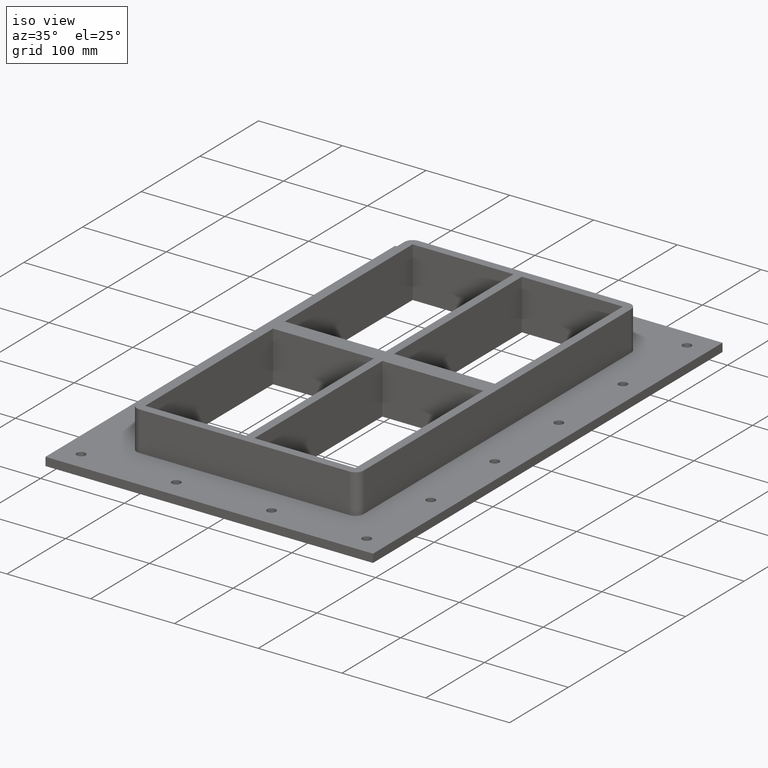
[diagram: clean part render]
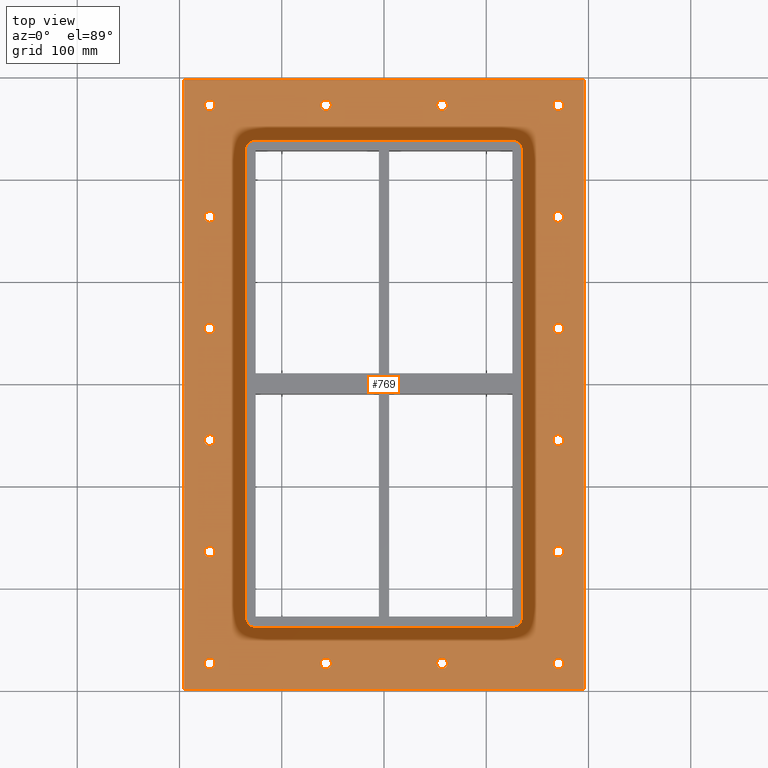
[diagram: tour spotlight — one face highlighted and labeled with its STEP entity id]
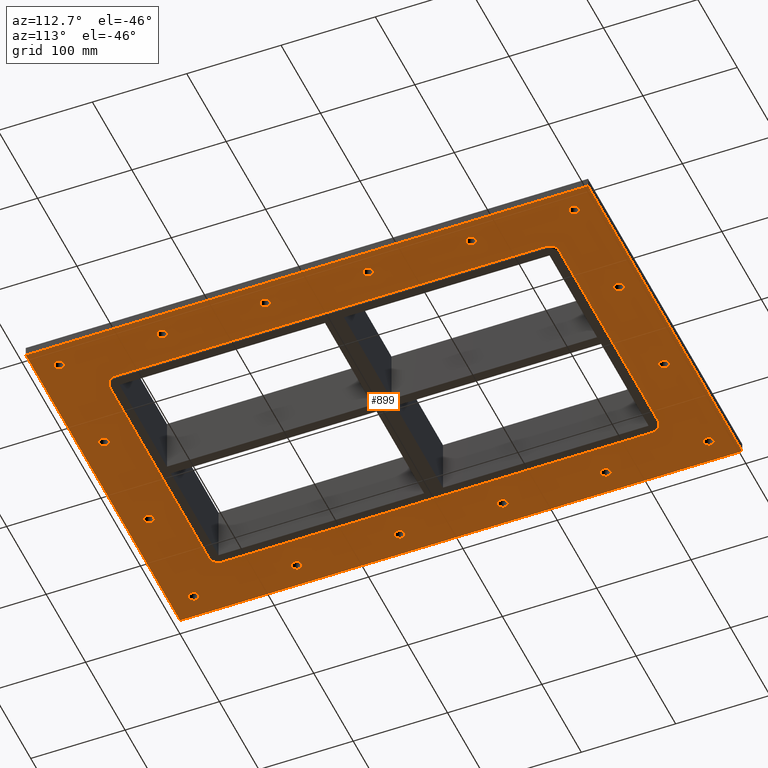
[diagram: tour spotlight — one face highlighted and labeled with its STEP entity id]
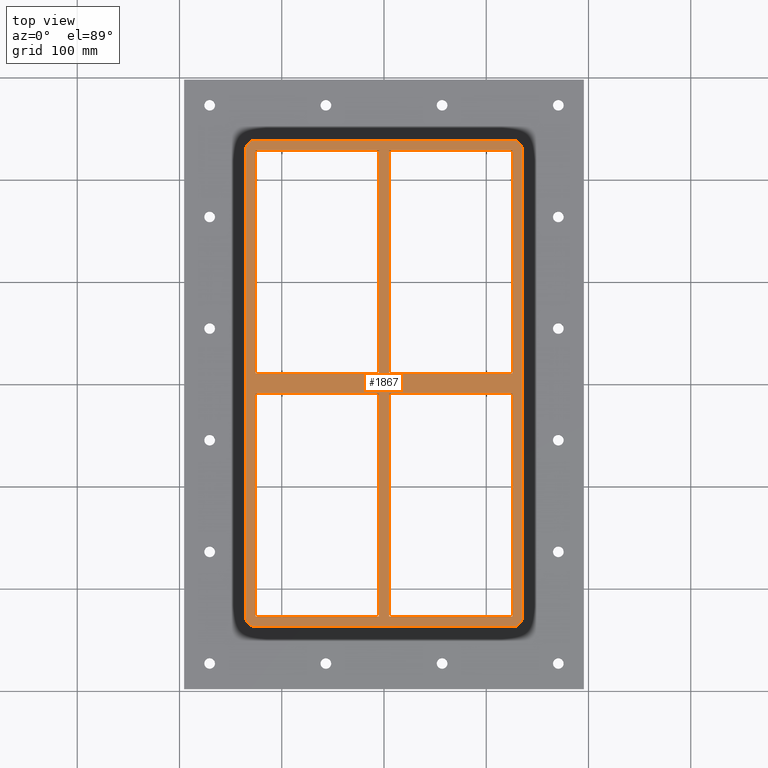
[diagram: tour spotlight — one face highlighted and labeled with its STEP entity id]
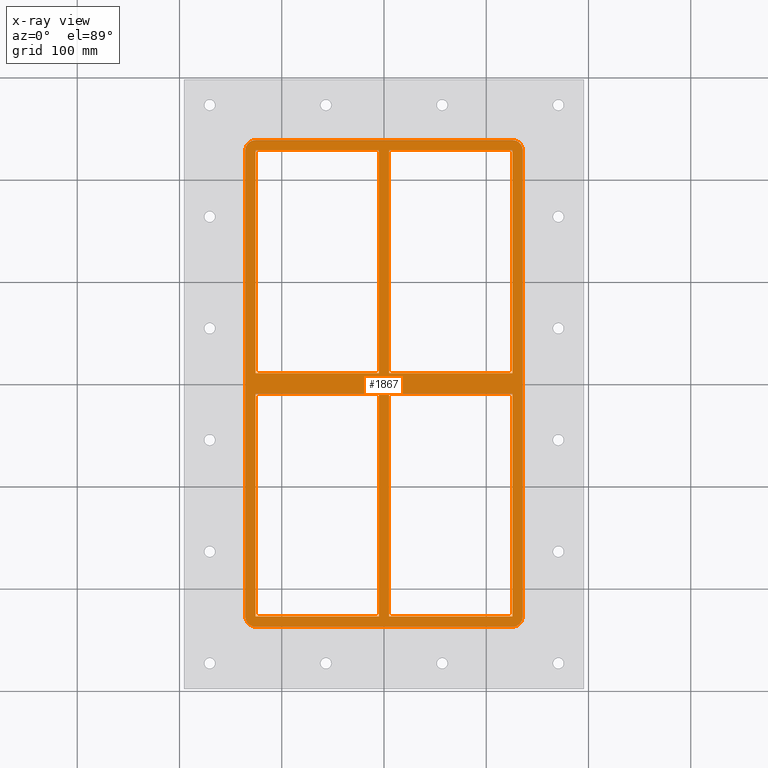
[diagram: x-ray of the same camera — body ghosted, this tour face saturated]
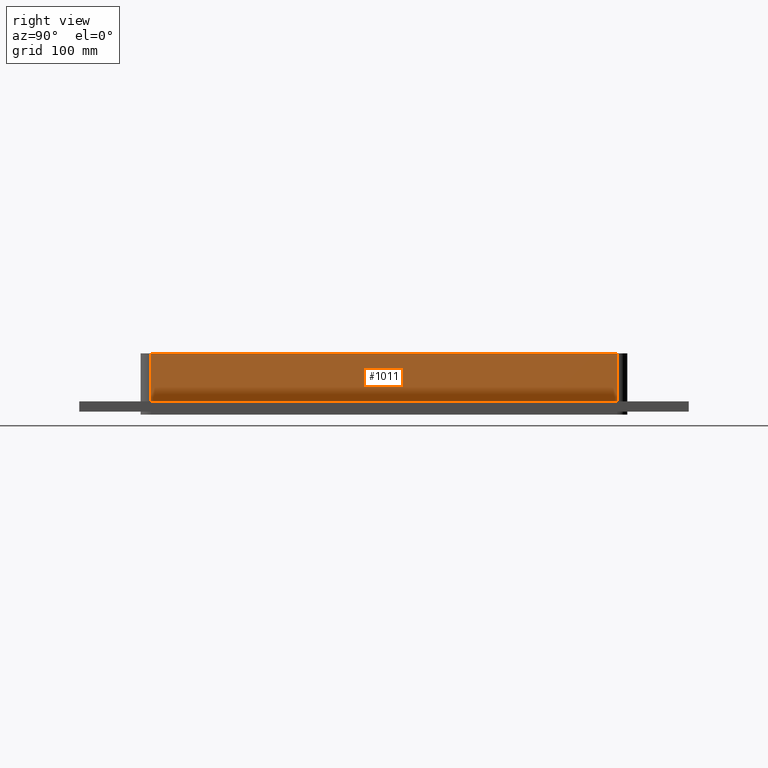
[diagram: tour spotlight — one face highlighted and labeled with its STEP entity id]
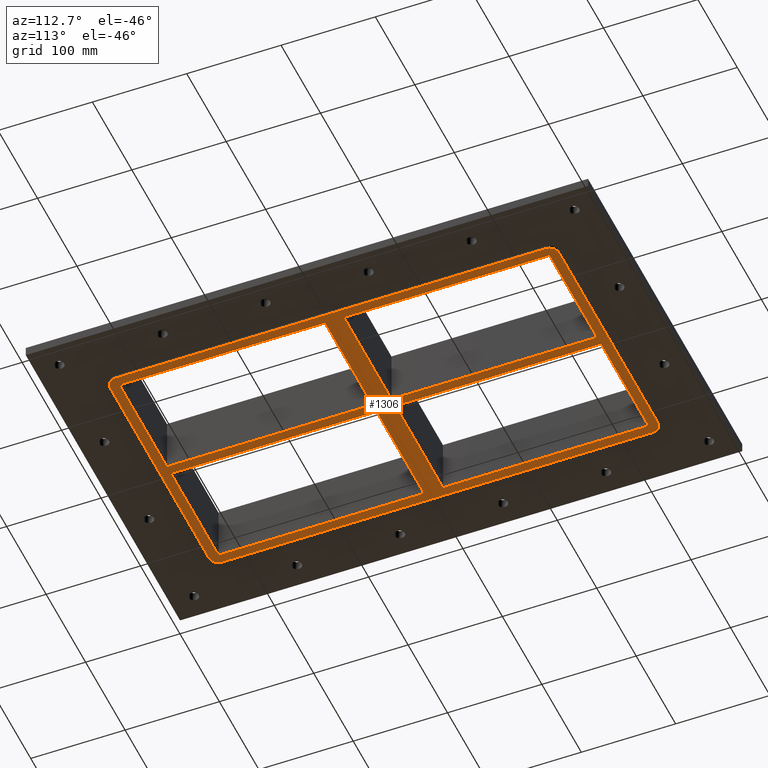
[diagram: tour spotlight — one face highlighted and labeled with its STEP entity id]
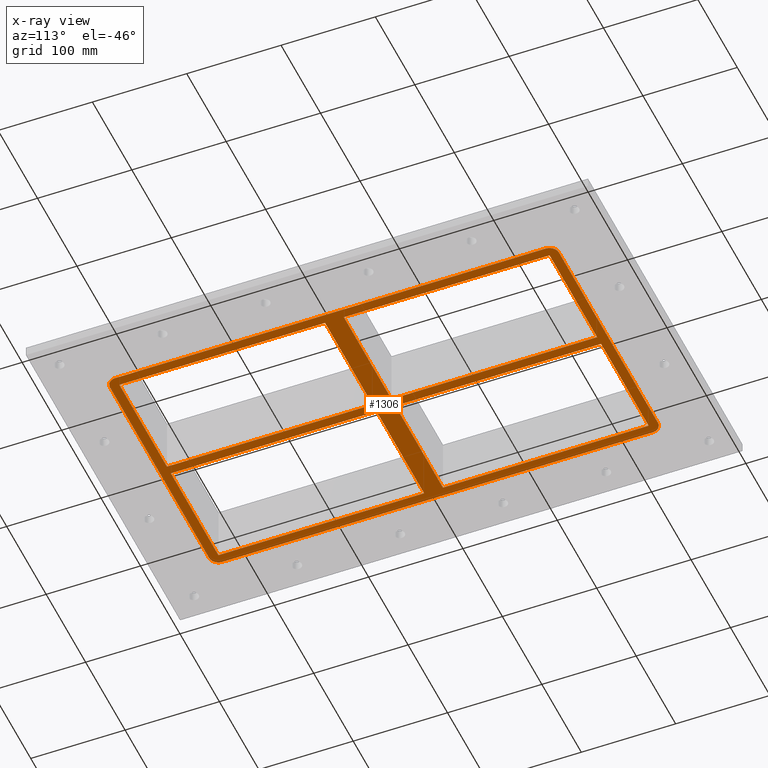
[diagram: x-ray of the same camera — body ghosted, this tour face saturated]
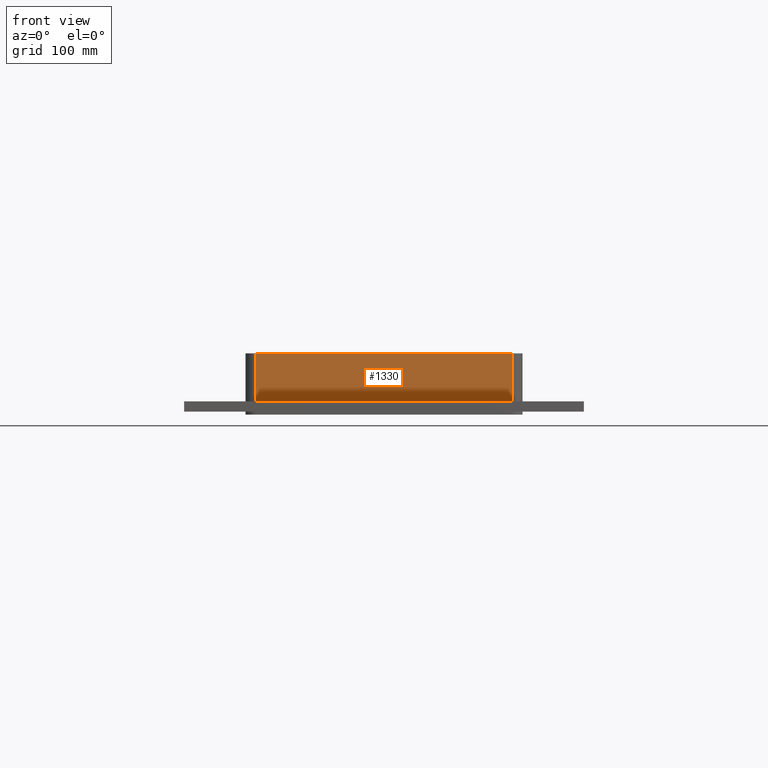
[diagram: tour spotlight — one face highlighted and labeled with its STEP entity id]
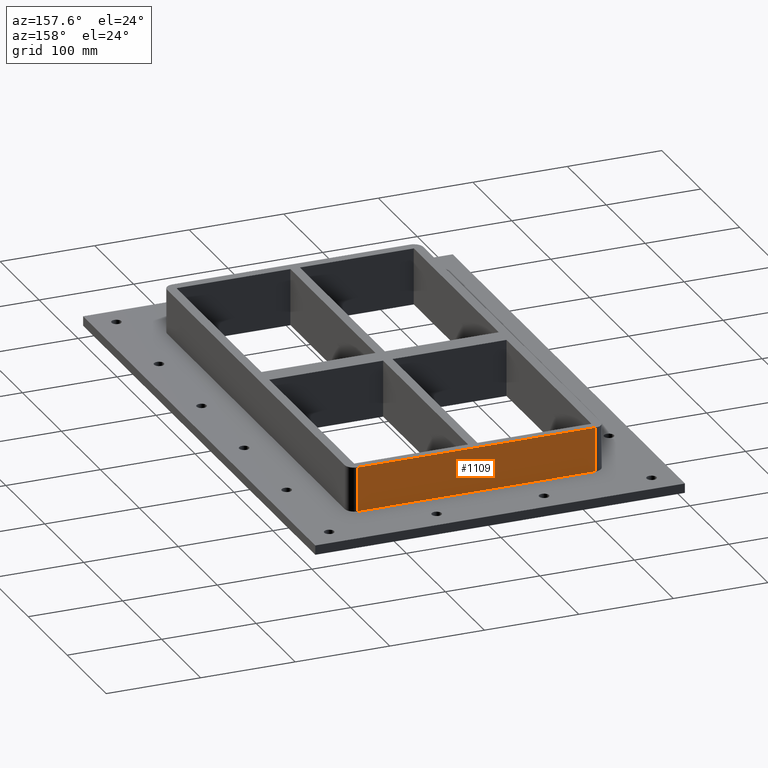
[diagram: tour spotlight — one face highlighted and labeled with its STEP entity id]
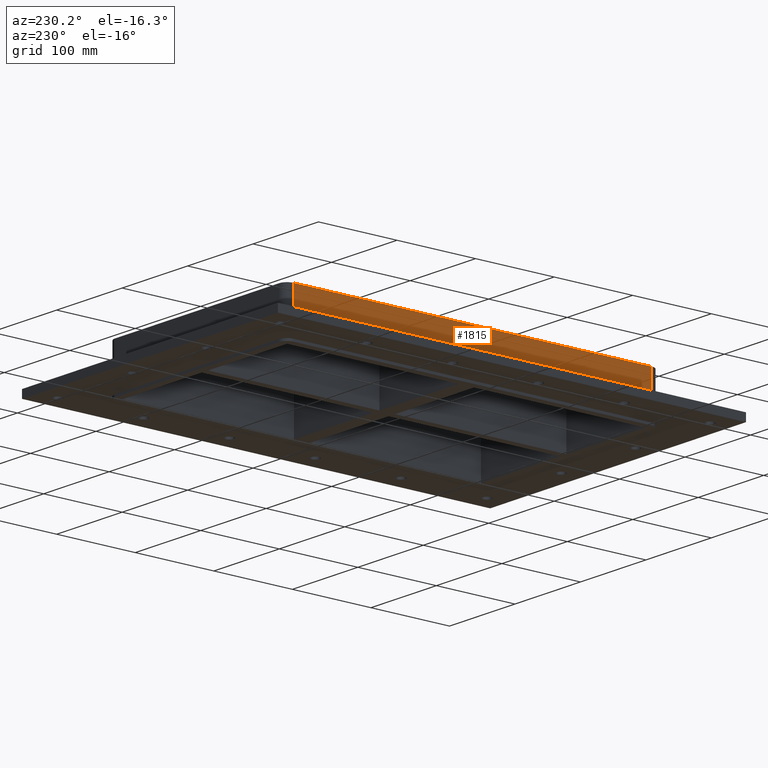
[diagram: tour spotlight — one face highlighted and labeled with its STEP entity id]
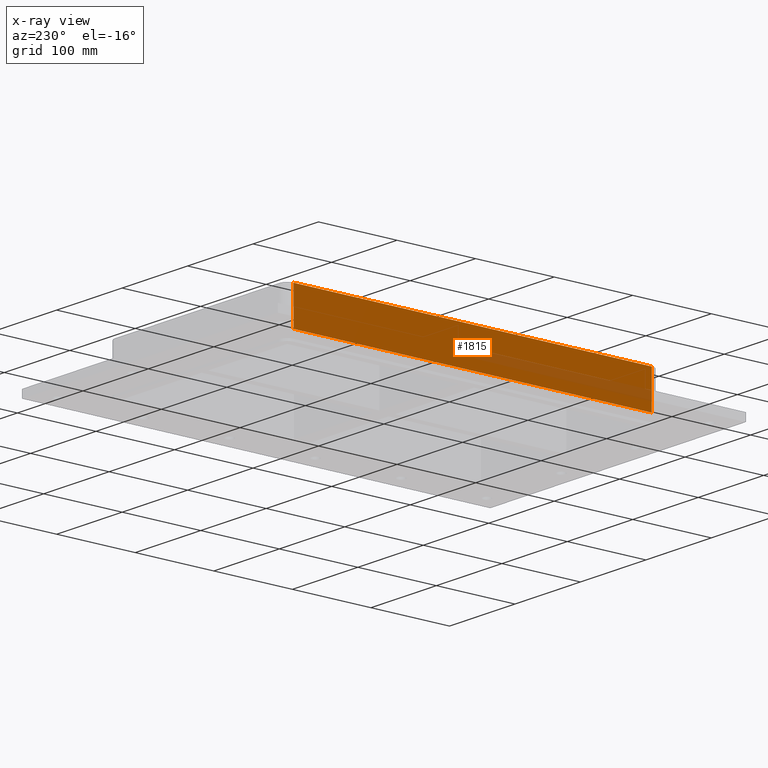
[diagram: x-ray of the same camera — body ghosted, this tour face saturated]
A machine part: a face-by-face anatomy tour. The part has 56 B-rep faces; the first image is the clean iso view, then the 8 largest visible faces are spotlighted one at a time (largest first), each with its STEP entity span.

Face 1 — top view, entity #769. In plain terms, the highlighted planar face has unit normal (0, 0, 1).
Definition (entity closure, byte-faithful):
#84=CARTESIAN_POINT('',(-51.583333333333314,-273.00000000000006,-16.999999999999996));
#85=VERTEX_POINT('',#84);
#86=CARTESIAN_POINT('',(-56.8333333333333,-273.00000000000006,-17.000000000000028));
#87=DIRECTION('',(0.0,0.0,-1.0));
#88=DIRECTION('',(1.0,0.0,0.0));
#89=AXIS2_PLACEMENT_3D('',#86,#87,#88);
#90=CIRCLE('',#89,5.25);
#91=EDGE_CURVE('',#85,#85,#90,.T.);
#112=CARTESIAN_POINT('',(62.083333333333357,-273.00000000000006,-16.999999999999996));
#113=VERTEX_POINT('',#112);
#114=CARTESIAN_POINT('',(56.833333333333371,-273.00000000000006,-17.000000000000028));
#115=DIRECTION('',(0.0,0.0,-1.0));
#116=DIRECTION('',(1.0,0.0,0.0));
#117=AXIS2_PLACEMENT_3D('',#114,#115,#116);
#118=CIRCLE('',#117,5.25);
#119=EDGE_CURVE('',#113,#113,#118,.T.);
#140=CARTESIAN_POINT('',(62.083333333333286,273.0,-16.999999999999996));
#141=VERTEX_POINT('',#140);
#142=CARTESIAN_POINT('',(56.8333333333333,273.0,-17.000000000000028));
#143=DIRECTION('',(0.0,0.0,-1.0));
#144=DIRECTION('',(1.0,0.0,0.0));
#145=AXIS2_PLACEMENT_3D('',#142,#143,#144);
#146=CIRCLE('',#145,5.25);
#147=EDGE_CURVE('',#141,#141,#146,.T.);
#168=CARTESIAN_POINT('',(-51.583333333333385,273.0,-16.999999999999996));
#169=VERTEX_POINT('',#168);
#170=CARTESIAN_POINT('',(-56.833333333333371,273.0,-17.000000000000028));
#171=DIRECTION('',(0.0,0.0,-1.0));
#172=DIRECTION('',(1.0,0.0,0.0));
#173=AXIS2_PLACEMENT_3D('',#170,#171,#172);
#174=CIRCLE('',#173,5.25);
#175=EDGE_CURVE('',#169,#169,#174,.T.);
#196=CARTESIAN_POINT('',(175.75,-163.79999999999981,-16.999999999999996));
#197=VERTEX_POINT('',#196);
#198=CARTESIAN_POINT('',(170.5,-163.79999999999981,-17.000000000000028));
#199=DIRECTION('',(0.0,0.0,-1.0));
#200=DIRECTION('',(1.0,0.0,0.0));
#201=AXIS2_PLACEMENT_3D('',#198,#199,#200);
#202=CIRCLE('',#201,5.25);
#203=EDGE_CURVE('',#197,#197,#202,.T.);
#224=CARTESIAN_POINT('',(175.75,-54.599999999999831,-16.999999999999996));
#225=VERTEX_POINT('',#224);
#226=CARTESIAN_POINT('',(170.5,-54.599999999999831,-17.000000000000028));
#227=DIRECTION('',(0.0,0.0,-1.0));
#228=DIRECTION('',(1.0,0.0,0.0));
#229=AXIS2_PLACEMENT_3D('',#226,#227,#228);
#230=CIRCLE('',#229,5.25);
#231=EDGE_CURVE('',#225,#225,#230,.T.);
#252=CARTESIAN_POINT('',(175.74999999999994,54.600000000000115,-16.999999999999996));
#253=VERTEX_POINT('',#252);
#254=CARTESIAN_POINT('',(170.49999999999997,54.600000000000115,-17.000000000000028));
#255=DIRECTION('',(0.0,0.0,-1.0));
#256=DIRECTION('',(1.0,0.0,0.0));
#257=AXIS2_PLACEMENT_3D('',#254,#255,#256);
#258=CIRCLE('',#257,5.25);
#259=EDGE_CURVE('',#253,#253,#258,.T.);
#280=CARTESIAN_POINT('',(175.74999999999994,163.8000000000001,-16.999999999999996));
#281=VERTEX_POINT('',#280);
#282=CARTESIAN_POINT('',(170.49999999999997,163.8000000000001,-17.000000000000028));
#283=DIRECTION('',(0.0,0.0,-1.0));
#284=DIRECTION('',(1.0,0.0,0.0));
#285=AXIS2_PLACEMENT_3D('',#282,#283,#284);
#286=CIRCLE('',#285,5.25);
#287=EDGE_CURVE('',#281,#281,#286,.T.);
#308=CARTESIAN_POINT('',(-165.25000000000003,163.7999999999999,-16.999999999999996));
#309=VERTEX_POINT('',#308);
#310=CARTESIAN_POINT('',(-170.5,163.7999999999999,-17.000000000000028));
#311=DIRECTION('',(0.0,0.0,-1.0));
#312=DIRECTION('',(1.0,0.0,0.0));
#313=AXIS2_PLACEMENT_3D('',#310,#311,#312);
#314=CIRCLE('',#313,5.25);
#315=EDGE_CURVE('',#309,#309,#314,.T.);
#336=CARTESIAN_POINT('',(-165.25000000000003,54.599999999999881,-16.999999999999996));
#337=VERTEX_POINT('',#336);
#338=CARTESIAN_POINT('',(-170.5,54.599999999999881,-17.000000000000028));
#339=DIRECTION('',(0.0,0.0,-1.0));
#340=DIRECTION('',(1.0,0.0,0.0));
#341=AXIS2_PLACEMENT_3D('',#338,#339,#340);
#342=CIRCLE('',#341,5.25);
#343=EDGE_CURVE('',#337,#337,#342,.T.);
#364=CARTESIAN_POINT('',(-165.25,-54.600000000000094,-16.999999999999996));
#365=VERTEX_POINT('',#364);
#366=CARTESIAN_POINT('',(-170.49999999999997,-54.600000000000094,-17.000000000000028));
#367=DIRECTION('',(0.0,0.0,-1.0));
#368=DIRECTION('',(1.0,0.0,0.0));
#369=AXIS2_PLACEMENT_3D('',#366,#367,#368);
#370=CIRCLE('',#369,5.25);
#371=EDGE_CURVE('',#365,#365,#370,.T.);
#392=CARTESIAN_POINT('',(-165.25,-163.8000000000001,-16.999999999999996));
#393=VERTEX_POINT('',#392);
#394=CARTESIAN_POINT('',(-170.49999999999997,-163.8000000000001,-17.000000000000028));
#395=DIRECTION('',(0.0,0.0,-1.0));
#396=DIRECTION('',(1.0,0.0,0.0));
#397=AXIS2_PLACEMENT_3D('',#394,#395,#396);
#398=CIRCLE('',#397,5.25);
#399=EDGE_CURVE('',#393,#393,#398,.T.);
#420=CARTESIAN_POINT('',(-165.25000000000006,272.99999999999994,-16.999999999999996));
#421=VERTEX_POINT('',#420);
#422=CARTESIAN_POINT('',(-170.50000000000006,272.99999999999994,-17.000000000000028));
#423=DIRECTION('',(0.0,0.0,-1.0));
#424=DIRECTION('',(1.0,0.0,0.0));
#425=AXIS2_PLACEMENT_3D('',#422,#423,#424);
#426=CIRCLE('',#425,5.25);
#427=EDGE_CURVE('',#421,#421,#426,.T.);
#448=CARTESIAN_POINT('',(175.74999999999994,273.00000000000006,-16.999999999999996));
#449=VERTEX_POINT('',#448);
#450=CARTESIAN_POINT('',(170.49999999999997,273.00000000000006,-17.000000000000028));
#451=DIRECTION('',(0.0,0.0,-1.0));
#452=DIRECTION('',(1.0,0.0,0.0));
#453=AXIS2_PLACEMENT_3D('',#450,#451,#452);
#454=CIRCLE('',#453,5.25);
#455=EDGE_CURVE('',#449,#449,#454,.T.);
#476=CARTESIAN_POINT('',(175.75000000000003,-273.0,-16.999999999999996));
#477=VERTEX_POINT('',#476);
#478=CARTESIAN_POINT('',(170.50000000000006,-273.0,-17.000000000000028));
#479=DIRECTION('',(0.0,0.0,-1.0));
#480=DIRECTION('',(1.0,0.0,0.0));
#481=AXIS2_PLACEMENT_3D('',#478,#479,#480);
#482=CIRCLE('',#481,5.25);
#483=EDGE_CURVE('',#477,#477,#482,.T.);
#504=CARTESIAN_POINT('',(-165.25,-273.00000000000006,-16.999999999999996));
#505=VERTEX_POINT('',#504);
#506=CARTESIAN_POINT('',(-170.49999999999997,-273.00000000000006,-17.000000000000028));
#507=DIRECTION('',(0.0,0.0,-1.0));
#508=DIRECTION('',(1.0,0.0,0.0));
#509=AXIS2_PLACEMENT_3D('',#506,#507,#508);
#510=CIRCLE('',#509,5.25);
#511=EDGE_CURVE('',#505,#505,#510,.T.);
#531=CARTESIAN_POINT('',(-195.49999999999997,-298.00000000000006,-17.0));
#532=VERTEX_POINT('',#531);
#539=CARTESIAN_POINT('',(-195.50000000000006,297.99999999999994,-17.0));
#540=VERTEX_POINT('',#539);
#541=CARTESIAN_POINT('',(-195.50000000000009,298.00000000000006,-17.0));
#542=DIRECTION('',(0.0,-1.0,0.0));
#543=VECTOR('',#542,596.00000000000011);
#544=LINE('',#541,#543);
#545=EDGE_CURVE('',#540,#532,#544,.T.);
#570=CARTESIAN_POINT('',(195.49999999999997,298.00000000000006,-17.0));
#571=VERTEX_POINT('',#570);
#572=CARTESIAN_POINT('',(195.50000000000003,298.00000000000006,-17.0));
#573=DIRECTION('',(-1.0,0.0,0.0));
#574=VECTOR('',#573,391.00000000000011);
#575=LINE('',#572,#574);
#576=EDGE_CURVE('',#571,#540,#575,.T.);
#601=CARTESIAN_POINT('',(195.50000000000006,-298.0,-17.0));
#602=VERTEX_POINT('',#601);
#603=CARTESIAN_POINT('',(195.50000000000006,-298.00000000000006,-17.0));
#604=DIRECTION('',(0.0,1.0,0.0));
#605=VECTOR('',#604,596.00000000000011);
#606=LINE('',#603,#605);
#607=EDGE_CURVE('',#602,#571,#606,.T.);
#630=CARTESIAN_POINT('',(-195.49999999999994,-298.00000000000006,-17.0));
#631=DIRECTION('',(1.0,0.0,0.0));
#632=VECTOR('',#631,391.0);
#633=LINE('',#630,#632);
#634=EDGE_CURVE('',#532,#602,#633,.T.);
#640=CARTESIAN_POINT('',(-8.638817E-015,-8.638817E-015,-16.999999999999996));
#641=DIRECTION('',(0.0,0.0,1.0));
#642=DIRECTION('',(1.0,0.0,0.0));
#643=AXIS2_PLACEMENT_3D('',#640,#641,#642);
#644=PLANE('',#643);
#645=ORIENTED_EDGE('',*,*,#634,.T.);
#646=ORIENTED_EDGE('',*,*,#607,.T.);
#647=ORIENTED_EDGE('',*,*,#576,.T.);
#648=ORIENTED_EDGE('',*,*,#545,.T.);
#649=EDGE_LOOP('',(#645,#646,#647,#648));
#650=FACE_OUTER_BOUND('',#649,.T.);
#651=ORIENTED_EDGE('',*,*,#91,.T.);
#652=EDGE_LOOP('',(#651));
#653=FACE_BOUND('',#652,.T.);
#654=ORIENTED_EDGE('',*,*,#119,.T.);
#655=EDGE_LOOP('',(#654));
#656=FACE_BOUND('',#655,.T.);
#657=ORIENTED_EDGE('',*,*,#147,.T.);
#658=EDGE_LOOP('',(#657));
#659=FACE_BOUND('',#658,.T.);
#660=ORIENTED_EDGE('',*,*,#175,.T.);
#661=EDGE_LOOP('',(#660));
#662=FACE_BOUND('',#661,.T.);
#663=ORIENTED_EDGE('',*,*,#203,.T.);
#664=EDGE_LOOP('',(#663));
#665=FACE_BOUND('',#664,.T.);
#666=ORIENTED_EDGE('',*,*,#231,.T.);
#667=EDGE_LOOP('',(#666));
#668=FACE_BOUND('',#667,.T.);
#669=ORIENTED_EDGE('',*,*,#259,.T.);
#670=EDGE_LOOP('',(#669));
#671=FACE_BOUND('',#670,.T.);
#672=ORIENTED_EDGE('',*,*,#287,.T.);
#673=EDGE_LOOP('',(#672));
#674=FACE_BOUND('',#673,.T.);
#675=ORIENTED_EDGE('',*,*,#315,.T.);
#676=EDGE_LOOP('',(#675));
#677=FACE_BOUND('',#676,.T.);
#678=ORIENTED_EDGE('',*,*,#343,.T.);
#679=EDGE_LOOP('',(#678));
#680=FACE_BOUND('',#679,.T.);
#681=ORIENTED_EDGE('',*,*,#371,.T.);
#682=EDGE_LOOP('',(#681));
#683=FACE_BOUND('',#682,.T.);
#684=ORIENTED_EDGE('',*,*,#399,.T.);
#685=EDGE_LOOP('',(#684));
#686=FACE_BOUND('',#685,.T.);
#687=ORIENTED_EDGE('',*,*,#427,.T.);
#688=EDGE_LOOP('',(#687));
#689=FACE_BOUND('',#688,.T.);
#690=ORIENTED_EDGE('',*,*,#455,.T.);
#691=EDGE_LOOP('',(#690));
#692=FACE_BOUND('',#691,.T.);
#693=ORIENTED_EDGE('',*,*,#483,.T.);
#694=EDGE_LOOP('',(#693));
#695=FACE_BOUND('',#694,.T.);
#696=ORIENTED_EDGE('',*,*,#511,.T.);
#697=EDGE_LOOP('',(#696));
#698=FACE_BOUND('',#697,.T.);
#699=CARTESIAN_POINT('',(135.50000000000003,228.00000000000006,-17.0));
#700=VERTEX_POINT('',#699);
#701=CARTESIAN_POINT('',(125.5,238.00000000000006,-17.0));
#702=VERTEX_POINT('',#701);
#703=CARTESIAN_POINT('',(125.5,228.0,-16.999999999999996));
#704=DIRECTION('',(0.0,0.0,1.0));
#705=DIRECTION('',(0.707106781186547,0.707106781186547,0.0));
#706=AXIS2_PLACEMENT_3D('',#703,#704,#705);
#707=CIRCLE('',#706,9.999999999999998);
#708=EDGE_CURVE('',#700,#702,#707,.T.);
#709=ORIENTED_EDGE('',*,*,#708,.F.);
#710=CARTESIAN_POINT('',(135.50000000000006,-227.99999999999997,-17.0));
#711=VERTEX_POINT('',#710);
#712=CARTESIAN_POINT('',(135.50000000000009,-227.99999999999997,-16.999999999999996));
#713=DIRECTION('',(0.0,1.0,0.0));
#714=VECTOR('',#713,456.0);
#715=LINE('',#712,#714);
#716=EDGE_CURVE('',#711,#700,#715,.T.);
#717=ORIENTED_EDGE('',*,*,#716,.F.);
#718=CARTESIAN_POINT('',(125.50000000000009,-238.00000000000006,-17.0));
#719=VERTEX_POINT('',#718);
#720=CARTESIAN_POINT('',(125.50000000000009,-228.00000000000006,-16.999999999999996));
#721=DIRECTION('',(0.0,0.0,1.0));
#722=DIRECTION('',(0.707106781186547,-0.707106781186547,0.0));
#723=AXIS2_PLACEMENT_3D('',#720,#721,#722);
#724=CIRCLE('',#723,9.999999999999998);
#725=EDGE_CURVE('',#719,#711,#724,.T.);
#726=ORIENTED_EDGE('',*,*,#725,.F.);
#727=CARTESIAN_POINT('',(-125.5,-238.00000000000006,-17.0));
#728=VERTEX_POINT('',#727);
#729=CARTESIAN_POINT('',(-125.5,-238.00000000000006,-16.999999999999996));
#730=DIRECTION('',(1.0,0.0,0.0));
#731=VECTOR('',#730,251.00000000000006);
#732=LINE('',#729,#731);
#733=EDGE_CURVE('',#728,#719,#732,.T.);
#734=ORIENTED_EDGE('',*,*,#733,.F.);
#735=CARTESIAN_POINT('',(-135.5,-228.00000000000006,-17.0));
#736=VERTEX_POINT('',#735);
#737=CARTESIAN_POINT('',(-125.49999999999991,-228.00000000000006,-16.999999999999996));
#738=DIRECTION('',(0.0,0.0,1.0));
#739=DIRECTION('',(-0.707106781186547,-0.707106781186547,0.0));
#740=AXIS2_PLACEMENT_3D('',#737,#738,#739);
#741=CIRCLE('',#740,9.999999999999998);
#742=EDGE_CURVE('',#736,#728,#741,.T.);
#743=ORIENTED_EDGE('',*,*,#742,.F.);
#744=CARTESIAN_POINT('',(-135.50000000000009,227.99999999999997,-17.0));
#745=VERTEX_POINT('',#744);
#746=CARTESIAN_POINT('',(-135.50000000000006,227.99999999999997,-16.999999999999996));
#747=DIRECTION('',(0.0,-1.0,0.0));
#748=VECTOR('',#747,456.0);
#749=LINE('',#746,#748);
#750=EDGE_CURVE('',#745,#736,#749,.T.);
#751=ORIENTED_EDGE('',*,*,#750,.F.);
#752=CARTESIAN_POINT('',(-125.50000000000009,237.99999999999997,-17.0));
#753=VERTEX_POINT('',#752);
#754=CARTESIAN_POINT('',(-125.50000000000006,228.0,-16.999999999999996));
#755=DIRECTION('',(0.0,0.0,1.0));
#756=DIRECTION('',(-0.707106781186547,0.707106781186547,0.0));
#757=AXIS2_PLACEMENT_3D('',#754,#755,#756);
#758=CIRCLE('',#757,9.999999999999998);
#759=EDGE_CURVE('',#753,#745,#758,.T.);
#760=ORIENTED_EDGE('',*,*,#759,.F.);
#761=CARTESIAN_POINT('',(125.50000000000001,238.0,-16.999999999999996));
#762=DIRECTION('',(-1.0,0.0,0.0));
#763=VECTOR('',#762,251.00000000000006);
#764=LINE('',#761,#763);
#765=EDGE_CURVE('',#702,#753,#764,.T.);
#766=ORIENTED_EDGE('',*,*,#765,.F.);
#767=EDGE_LOOP('',(#709,#717,#726,#734,#743,#751,#760,#766));
#768=FACE_BOUND('',#767,.T.);
#769=ADVANCED_FACE('',(#650,#653,#656,#659,#662,#665,#668,#671,#674,#677,#680,#683,#686,#689,#692,#695,#698,#768),#644,.T.);

Face 2 — auxiliary view, entity #899. In plain terms, the highlighted planar face has unit normal (0, 0, 1).
Definition (entity closure, byte-faithful):
#73=CARTESIAN_POINT('',(-62.083333333333286,-273.00000000000006,-27.000000000000028));
#74=VERTEX_POINT('',#73);
#75=CARTESIAN_POINT('',(-56.8333333333333,-273.00000000000006,-27.000000000000028));
#76=DIRECTION('',(0.0,0.0,1.0));
#77=DIRECTION('',(1.0,0.0,0.0));
#78=AXIS2_PLACEMENT_3D('',#75,#76,#77);
#79=CIRCLE('',#78,5.25);
#80=EDGE_CURVE('',#74,#74,#79,.T.);
#101=CARTESIAN_POINT('',(51.583333333333385,-273.00000000000006,-27.000000000000028));
#102=VERTEX_POINT('',#101);
#103=CARTESIAN_POINT('',(56.833333333333371,-273.00000000000006,-27.000000000000028));
#104=DIRECTION('',(0.0,0.0,1.0));
#105=DIRECTION('',(1.0,0.0,0.0));
#106=AXIS2_PLACEMENT_3D('',#103,#104,#105);
#107=CIRCLE('',#106,5.25);
#108=EDGE_CURVE('',#102,#102,#107,.T.);
#129=CARTESIAN_POINT('',(51.583333333333314,273.0,-27.000000000000028));
#130=VERTEX_POINT('',#129);
#131=CARTESIAN_POINT('',(56.8333333333333,273.0,-27.000000000000028));
#132=DIRECTION('',(0.0,0.0,1.0));
#133=DIRECTION('',(1.0,0.0,0.0));
#134=AXIS2_PLACEMENT_3D('',#131,#132,#133);
#135=CIRCLE('',#134,5.25);
#136=EDGE_CURVE('',#130,#130,#135,.T.);
#157=CARTESIAN_POINT('',(-62.083333333333357,273.0,-27.000000000000028));
#158=VERTEX_POINT('',#157);
#159=CARTESIAN_POINT('',(-56.833333333333371,273.0,-27.000000000000028));
#160=DIRECTION('',(0.0,0.0,1.0));
#161=DIRECTION('',(1.0,0.0,0.0));
#162=AXIS2_PLACEMENT_3D('',#159,#160,#161);
#163=CIRCLE('',#162,5.25);
#164=EDGE_CURVE('',#158,#158,#163,.T.);
#185=CARTESIAN_POINT('',(165.25000000000003,-163.79999999999981,-27.000000000000028));
#186=VERTEX_POINT('',#185);
#187=CARTESIAN_POINT('',(170.5,-163.79999999999981,-27.000000000000028));
#188=DIRECTION('',(0.0,0.0,1.0));
#189=DIRECTION('',(1.0,0.0,0.0));
#190=AXIS2_PLACEMENT_3D('',#187,#188,#189);
#191=CIRCLE('',#190,5.25);
#192=EDGE_CURVE('',#186,#186,#191,.T.);
#213=CARTESIAN_POINT('',(165.25000000000003,-54.599999999999831,-27.000000000000028));
#214=VERTEX_POINT('',#213);
#215=CARTESIAN_POINT('',(170.5,-54.599999999999831,-27.000000000000028));
#216=DIRECTION('',(0.0,0.0,1.0));
#217=DIRECTION('',(1.0,0.0,0.0));
#218=AXIS2_PLACEMENT_3D('',#215,#216,#217);
#219=CIRCLE('',#218,5.25);
#220=EDGE_CURVE('',#214,#214,#219,.T.);
#241=CARTESIAN_POINT('',(165.25,54.600000000000115,-27.000000000000028));
#242=VERTEX_POINT('',#241);
#243=CARTESIAN_POINT('',(170.49999999999997,54.600000000000115,-27.000000000000028));
#244=DIRECTION('',(0.0,0.0,1.0));
#245=DIRECTION('',(1.0,0.0,0.0));
#246=AXIS2_PLACEMENT_3D('',#243,#244,#245);
#247=CIRCLE('',#246,5.25);
#248=EDGE_CURVE('',#242,#242,#247,.T.);
#269=CARTESIAN_POINT('',(165.25,163.8000000000001,-27.000000000000028));
#270=VERTEX_POINT('',#269);
#271=CARTESIAN_POINT('',(170.49999999999997,163.8000000000001,-27.000000000000028));
#272=DIRECTION('',(0.0,0.0,1.0));
#273=DIRECTION('',(1.0,0.0,0.0));
#274=AXIS2_PLACEMENT_3D('',#271,#272,#273);
#275=CIRCLE('',#274,5.25);
#276=EDGE_CURVE('',#270,#270,#275,.T.);
#297=CARTESIAN_POINT('',(-175.75,163.7999999999999,-27.000000000000028));
#298=VERTEX_POINT('',#297);
#299=CARTESIAN_POINT('',(-170.5,163.7999999999999,-27.000000000000028));
#300=DIRECTION('',(0.0,0.0,1.0));
#301=DIRECTION('',(1.0,0.0,0.0));
#302=AXIS2_PLACEMENT_3D('',#299,#300,#301);
#303=CIRCLE('',#302,5.25);
#304=EDGE_CURVE('',#298,#298,#303,.T.);
#325=CARTESIAN_POINT('',(-175.75,54.599999999999881,-27.000000000000028));
#326=VERTEX_POINT('',#325);
#327=CARTESIAN_POINT('',(-170.5,54.599999999999881,-27.000000000000028));
#328=DIRECTION('',(0.0,0.0,1.0));
#329=DIRECTION('',(1.0,0.0,0.0));
#330=AXIS2_PLACEMENT_3D('',#327,#328,#329);
#331=CIRCLE('',#330,5.25);
#332=EDGE_CURVE('',#326,#326,#331,.T.);
#353=CARTESIAN_POINT('',(-175.74999999999994,-54.600000000000094,-27.000000000000028));
#354=VERTEX_POINT('',#353);
#355=CARTESIAN_POINT('',(-170.49999999999997,-54.600000000000094,-27.000000000000028));
#356=DIRECTION('',(0.0,0.0,1.0));
#357=DIRECTION('',(1.0,0.0,0.0));
#358=AXIS2_PLACEMENT_3D('',#355,#356,#357);
#359=CIRCLE('',#358,5.25);
#360=EDGE_CURVE('',#354,#354,#359,.T.);
#381=CARTESIAN_POINT('',(-175.74999999999994,-163.8000000000001,-27.000000000000028));
#382=VERTEX_POINT('',#381);
#383=CARTESIAN_POINT('',(-170.49999999999997,-163.8000000000001,-27.000000000000028));
#384=DIRECTION('',(0.0,0.0,1.0));
#385=DIRECTION('',(1.0,0.0,0.0));
#386=AXIS2_PLACEMENT_3D('',#383,#384,#385);
#387=CIRCLE('',#386,5.25);
#388=EDGE_CURVE('',#382,#382,#387,.T.);
#409=CARTESIAN_POINT('',(-175.75000000000003,272.99999999999994,-27.000000000000028));
#410=VERTEX_POINT('',#409);
#411=CARTESIAN_POINT('',(-170.50000000000006,272.99999999999994,-27.000000000000028));
#412=DIRECTION('',(0.0,0.0,1.0));
#413=DIRECTION('',(1.0,0.0,0.0));
#414=AXIS2_PLACEMENT_3D('',#411,#412,#413);
#415=CIRCLE('',#414,5.25);
#416=EDGE_CURVE('',#410,#410,#415,.T.);
#437=CARTESIAN_POINT('',(165.25,273.00000000000006,-27.000000000000028));
#438=VERTEX_POINT('',#437);
#439=CARTESIAN_POINT('',(170.49999999999997,273.00000000000006,-27.000000000000028));
#440=DIRECTION('',(0.0,0.0,1.0));
#441=DIRECTION('',(1.0,0.0,0.0));
#442=AXIS2_PLACEMENT_3D('',#439,#440,#441);
#443=CIRCLE('',#442,5.25);
#444=EDGE_CURVE('',#438,#438,#443,.T.);
#465=CARTESIAN_POINT('',(165.25000000000006,-273.0,-27.000000000000028));
#466=VERTEX_POINT('',#465);
#467=CARTESIAN_POINT('',(170.50000000000006,-273.0,-27.000000000000028));
#468=DIRECTION('',(0.0,0.0,1.0));
#469=DIRECTION('',(1.0,0.0,0.0));
#470=AXIS2_PLACEMENT_3D('',#467,#468,#469);
#471=CIRCLE('',#470,5.25);
#472=EDGE_CURVE('',#466,#466,#471,.T.);
#493=CARTESIAN_POINT('',(-175.74999999999994,-273.00000000000006,-27.000000000000028));
#494=VERTEX_POINT('',#493);
#495=CARTESIAN_POINT('',(-170.49999999999997,-273.00000000000006,-27.000000000000028));
#496=DIRECTION('',(0.0,0.0,1.0));
#497=DIRECTION('',(1.0,0.0,0.0));
#498=AXIS2_PLACEMENT_3D('',#495,#496,#497);
#499=CIRCLE('',#498,5.25);
#500=EDGE_CURVE('',#494,#494,#499,.T.);
#521=CARTESIAN_POINT('',(-195.49999999999997,-298.00000000000006,-27.0));
#522=VERTEX_POINT('',#521);
#523=CARTESIAN_POINT('',(-195.50000000000009,298.0,-27.0));
#524=VERTEX_POINT('',#523);
#525=CARTESIAN_POINT('',(-195.49999999999997,-298.00000000000006,-27.0));
#526=DIRECTION('',(0.0,1.0,0.0));
#527=VECTOR('',#526,596.00000000000011);
#528=LINE('',#525,#527);
#529=EDGE_CURVE('',#522,#524,#528,.T.);
#561=CARTESIAN_POINT('',(195.49999999999997,298.00000000000006,-27.0));
#562=VERTEX_POINT('',#561);
#563=CARTESIAN_POINT('',(-195.50000000000009,298.0,-27.0));
#564=DIRECTION('',(1.0,0.0,0.0));
#565=VECTOR('',#564,391.00000000000011);
#566=LINE('',#563,#565);
#567=EDGE_CURVE('',#524,#562,#566,.T.);
#592=CARTESIAN_POINT('',(195.50000000000006,-298.0,-27.0));
#593=VERTEX_POINT('',#592);
#594=CARTESIAN_POINT('',(195.49999999999997,298.00000000000006,-27.0));
#595=DIRECTION('',(0.0,-1.0,0.0));
#596=VECTOR('',#595,596.00000000000011);
#597=LINE('',#594,#596);
#598=EDGE_CURVE('',#562,#593,#597,.T.);
#623=CARTESIAN_POINT('',(195.50000000000006,-298.0,-27.0));
#624=DIRECTION('',(-1.0,0.0,0.0));
#625=VECTOR('',#624,391.0);
#626=LINE('',#623,#625);
#627=EDGE_CURVE('',#593,#522,#626,.T.);
#770=CARTESIAN_POINT('',(-8.638817E-015,-8.638817E-015,-26.999999999999996));
#771=DIRECTION('',(0.0,0.0,1.0));
#772=DIRECTION('',(1.0,0.0,0.0));
#773=AXIS2_PLACEMENT_3D('',#770,#771,#772);
#774=PLANE('',#773);
#775=ORIENTED_EDGE('',*,*,#627,.T.);
#776=ORIENTED_EDGE('',*,*,#529,.T.);
#777=ORIENTED_EDGE('',*,*,#567,.T.);
#778=ORIENTED_EDGE('',*,*,#598,.T.);
#779=EDGE_LOOP('',(#775,#776,#777,#778));
#780=FACE_OUTER_BOUND('',#779,.T.);
#781=ORIENTED_EDGE('',*,*,#80,.T.);
#782=EDGE_LOOP('',(#781));
#783=FACE_BOUND('',#782,.T.);
#784=ORIENTED_EDGE('',*,*,#108,.T.);
#785=EDGE_LOOP('',(#784));
#786=FACE_BOUND('',#785,.T.);
#787=ORIENTED_EDGE('',*,*,#136,.T.);
#788=EDGE_LOOP('',(#787));
#789=FACE_BOUND('',#788,.T.);
#790=ORIENTED_EDGE('',*,*,#164,.T.);
#791=EDGE_LOOP('',(#790));
#792=FACE_BOUND('',#791,.T.);
#793=ORIENTED_EDGE('',*,*,#192,.T.);
#794=EDGE_LOOP('',(#793));
#795=FACE_BOUND('',#794,.T.);
#796=ORIENTED_EDGE('',*,*,#220,.T.);
#797=EDGE_LOOP('',(#796));
#798=FACE_BOUND('',#797,.T.);
#799=ORIENTED_EDGE('',*,*,#248,.T.);
#800=EDGE_LOOP('',(#799));
#801=FACE_BOUND('',#800,.T.);
#802=ORIENTED_EDGE('',*,*,#276,.T.);
#803=EDGE_LOOP('',(#802));
#804=FACE_BOUND('',#803,.T.);
#805=ORIENTED_EDGE('',*,*,#304,.T.);
#806=EDGE_LOOP('',(#805));
#807=FACE_BOUND('',#806,.T.);
#808=ORIENTED_EDGE('',*,*,#332,.T.);
#809=EDGE_LOOP('',(#808));
#810=FACE_BOUND('',#809,.T.);
#811=ORIENTED_EDGE('',*,*,#360,.T.);
#812=EDGE_LOOP('',(#811));
#813=FACE_BOUND('',#812,.T.);
#814=ORIENTED_EDGE('',*,*,#388,.T.);
#815=EDGE_LOOP('',(#814));
#816=FACE_BOUND('',#815,.T.);
#817=ORIENTED_EDGE('',*,*,#416,.T.);
#818=EDGE_LOOP('',(#817));
#819=FACE_BOUND('',#818,.T.);
#820=ORIENTED_EDGE('',*,*,#444,.T.);
#821=EDGE_LOOP('',(#820));
#822=FACE_BOUND('',#821,.T.);
#823=ORIENTED_EDGE('',*,*,#472,.T.);
#824=EDGE_LOOP('',(#823));
#825=FACE_BOUND('',#824,.T.);
#826=ORIENTED_EDGE('',*,*,#500,.T.);
#827=EDGE_LOOP('',(#826));
#828=FACE_BOUND('',#827,.T.);
#829=CARTESIAN_POINT('',(125.5,238.00000000000006,-27.0));
#830=VERTEX_POINT('',#829);
#831=CARTESIAN_POINT('',(135.50000000000003,228.00000000000006,-27.0));
#832=VERTEX_POINT('',#831);
#833=CARTESIAN_POINT('',(125.5,228.0,-26.999999999999996));
#834=DIRECTION('',(0.0,0.0,-1.0));
#835=DIRECTION('',(0.707106781186547,0.707106781186547,0.0));
#836=AXIS2_PLACEMENT_3D('',#833,#834,#835);
#837=CIRCLE('',#836,9.999999999999998);
#838=EDGE_CURVE('',#830,#832,#837,.T.);
#839=ORIENTED_EDGE('',*,*,#838,.F.);
#840=CARTESIAN_POINT('',(-125.50000000000009,237.99999999999997,-27.0));
#841=VERTEX_POINT('',#840);
#842=CARTESIAN_POINT('',(-125.50000000000006,238.0,-26.999999999999996));
#843=DIRECTION('',(1.0,0.0,0.0));
#844=VECTOR('',#843,251.00000000000006);
#845=LINE('',#842,#844);
#846=EDGE_CURVE('',#841,#830,#845,.T.);
#847=ORIENTED_EDGE('',*,*,#846,.F.);
#848=CARTESIAN_POINT('',(-135.50000000000009,227.99999999999997,-27.0));
#849=VERTEX_POINT('',#848);
#850=CARTESIAN_POINT('',(-125.50000000000006,228.0,-26.999999999999996));
#851=DIRECTION('',(0.0,0.0,-1.0));
#852=DIRECTION('',(-0.707106781186547,0.707106781186547,0.0));
#853=AXIS2_PLACEMENT_3D('',#850,#851,#852);
#854=CIRCLE('',#853,9.999999999999998);
#855=EDGE_CURVE('',#849,#841,#854,.T.);
#856=ORIENTED_EDGE('',*,*,#855,.F.);
#857=CARTESIAN_POINT('',(-135.50000000000003,-228.00000000000006,-27.0));
#858=VERTEX_POINT('',#857);
#859=CARTESIAN_POINT('',(-135.49999999999991,-228.0,-26.999999999999996));
#860=DIRECTION('',(0.0,1.0,0.0));
#861=VECTOR('',#860,456.0);
#862=LINE('',#859,#861);
#863=EDGE_CURVE('',#858,#849,#862,.T.);
#864=ORIENTED_EDGE('',*,*,#863,.F.);
#865=CARTESIAN_POINT('',(-125.5,-238.00000000000006,-27.0));
#866=VERTEX_POINT('',#865);
#867=CARTESIAN_POINT('',(-125.49999999999991,-228.00000000000006,-26.999999999999996));
#868=DIRECTION('',(0.0,0.0,-1.0));
#869=DIRECTION('',(-0.707106781186547,-0.707106781186547,0.0));
#870=AXIS2_PLACEMENT_3D('',#867,#868,#869);
#871=CIRCLE('',#870,9.999999999999998);
#872=EDGE_CURVE('',#866,#858,#871,.T.);
#873=ORIENTED_EDGE('',*,*,#872,.F.);
#874=CARTESIAN_POINT('',(125.50000000000009,-238.00000000000006,-27.0));
#875=VERTEX_POINT('',#874);
#876=CARTESIAN_POINT('',(125.50000000000007,-238.00000000000006,-26.999999999999996));
#877=DIRECTION('',(-1.0,0.0,0.0));
#878=VECTOR('',#877,251.00000000000006);
#879=LINE('',#876,#878);
#880=EDGE_CURVE('',#875,#866,#879,.T.);
#881=ORIENTED_EDGE('',*,*,#880,.F.);
#882=CARTESIAN_POINT('',(135.50000000000006,-227.99999999999997,-27.0));
#883=VERTEX_POINT('',#882);
#884=CARTESIAN_POINT('',(125.50000000000009,-228.00000000000006,-26.999999999999996));
#885=DIRECTION('',(0.0,0.0,-1.0));
#886=DIRECTION('',(0.707106781186547,-0.707106781186547,0.0));
#887=AXIS2_PLACEMENT_3D('',#884,#885,#886);
#888=CIRCLE('',#887,9.999999999999998);
#889=EDGE_CURVE('',#883,#875,#888,.T.);
#890=ORIENTED_EDGE('',*,*,#889,.F.);
#891=CARTESIAN_POINT('',(135.5,228.0,-26.999999999999996));
#892=DIRECTION('',(0.0,-1.0,0.0));
#893=VECTOR('',#892,456.0);
#894=LINE('',#891,#893);
#895=EDGE_CURVE('',#832,#883,#894,.T.);
#896=ORIENTED_EDGE('',*,*,#895,.F.);
#897=EDGE_LOOP('',(#839,#847,#856,#864,#873,#881,#890,#896));
#898=FACE_BOUND('',#897,.T.);
#899=ADVANCED_FACE('',(#780,#783,#786,#789,#792,#795,#798,#801,#804,#807,#810,#813,#816,#819,#822,#825,#828,#898),#774,.F.);

Face 3 — top view, entity #1867. An x-ray twin of the same camera follows (body ghosted, this face saturated) — the face is partly hidden behind the body. In plain terms, the highlighted planar face has unit normal (0, 0, 1).
Definition (entity closure, byte-faithful):
#938=CARTESIAN_POINT('',(135.50000000000009,-228.00000000000006,30.0));
#939=VERTEX_POINT('',#938);
#946=CARTESIAN_POINT('',(125.5000000000001,-238.00000000000006,30.0));
#947=VERTEX_POINT('',#946);
#948=CARTESIAN_POINT('',(125.50000000000009,-228.00000000000006,30.0));
#949=DIRECTION('',(0.0,0.0,-1.0));
#950=DIRECTION('',(0.707106781186547,-0.707106781186547,0.0));
#951=AXIS2_PLACEMENT_3D('',#948,#949,#950);
#952=CIRCLE('',#951,9.999999999999998);
#953=EDGE_CURVE('',#939,#947,#952,.T.);
#994=CARTESIAN_POINT('',(135.5,228.00000000000006,30.0));
#995=VERTEX_POINT('',#994);
#1002=CARTESIAN_POINT('',(135.50000000000009,-228.00000000000006,30.0));
#1003=DIRECTION('',(0.0,1.0,0.0));
#1004=VECTOR('',#1003,456.00000000000011);
#1005=LINE('',#1002,#1004);
#1006=EDGE_CURVE('',#939,#995,#1005,.T.);
#1043=CARTESIAN_POINT('',(125.5,238.0,30.0));
#1044=VERTEX_POINT('',#1043);
#1051=CARTESIAN_POINT('',(125.5,228.0,30.0));
#1052=DIRECTION('',(0.0,0.0,-1.0));
#1053=DIRECTION('',(0.707106781186547,0.707106781186547,0.0));
#1054=AXIS2_PLACEMENT_3D('',#1051,#1052,#1053);
#1055=CIRCLE('',#1054,9.999999999999998);
#1056=EDGE_CURVE('',#1044,#995,#1055,.T.);
#1092=CARTESIAN_POINT('',(-125.50000000000006,238.0,30.0));
#1093=VERTEX_POINT('',#1092);
#1100=CARTESIAN_POINT('',(125.50000000000001,238.0,30.0));
#1101=DIRECTION('',(-1.0,0.0,0.0));
#1102=VECTOR('',#1101,251.00000000000006);
#1103=LINE('',#1100,#1102);
#1104=EDGE_CURVE('',#1044,#1093,#1103,.T.);
#1314=CARTESIAN_POINT('',(-125.49999999999991,-238.00000000000006,30.0));
#1315=VERTEX_POINT('',#1314);
#1316=CARTESIAN_POINT('',(-125.49999999999991,-238.00000000000006,30.0));
#1317=DIRECTION('',(1.0,0.0,0.0));
#1318=VECTOR('',#1317,251.0);
#1319=LINE('',#1316,#1318);
#1320=EDGE_CURVE('',#1315,#947,#1319,.T.);
#1338=CARTESIAN_POINT('',(-135.49999999999991,-228.00000000000009,30.0));
#1339=VERTEX_POINT('',#1338);
#1340=CARTESIAN_POINT('',(-125.49999999999991,-228.00000000000006,30.0));
#1341=DIRECTION('',(0.0,0.0,-1.0));
#1342=DIRECTION('',(-0.707106781186547,-0.707106781186547,0.0));
#1343=AXIS2_PLACEMENT_3D('',#1340,#1341,#1342);
#1344=CIRCLE('',#1343,9.999999999999998);
#1345=EDGE_CURVE('',#1315,#1339,#1344,.T.);
#1362=CARTESIAN_POINT('',(-135.50000000000006,228.0,30.0));
#1363=VERTEX_POINT('',#1362);
#1370=CARTESIAN_POINT('',(-125.50000000000006,228.0,30.0));
#1371=DIRECTION('',(0.0,0.0,-1.0));
#1372=DIRECTION('',(-0.707106781186547,0.707106781186547,0.0));
#1373=AXIS2_PLACEMENT_3D('',#1370,#1371,#1372);
#1374=CIRCLE('',#1373,9.999999999999998);
#1375=EDGE_CURVE('',#1363,#1093,#1374,.T.);
#1421=CARTESIAN_POINT('',(4.999999999999965,227.99999999999994,30.0));
#1422=VERTEX_POINT('',#1421);
#1429=CARTESIAN_POINT('',(5.000000000000018,9.999999999999858,30.0));
#1430=VERTEX_POINT('',#1429);
#1431=CARTESIAN_POINT('',(5.000000000000018,9.999999999999858,30.0));
#1432=DIRECTION('',(0.0,1.0,0.0));
#1433=VECTOR('',#1432,218.00000000000006);
#1434=LINE('',#1431,#1433);
#1435=EDGE_CURVE('',#1430,#1422,#1434,.T.);
#1453=CARTESIAN_POINT('',(125.50000000000003,9.999999999999929,30.0));
#1454=VERTEX_POINT('',#1453);
#1455=CARTESIAN_POINT('',(125.50000000000003,9.999999999999929,30.0));
#1456=DIRECTION('',(-1.0,0.0,0.0));
#1457=VECTOR('',#1456,120.50000000000001);
#1458=LINE('',#1455,#1457);
#1459=EDGE_CURVE('',#1454,#1430,#1458,.T.);
#1477=CARTESIAN_POINT('',(125.49999999999999,227.99999999999994,30.0));
#1478=VERTEX_POINT('',#1477);
#1479=CARTESIAN_POINT('',(125.49999999999999,227.99999999999994,30.0));
#1480=DIRECTION('',(0.0,-1.0,0.0));
#1481=VECTOR('',#1480,218.0);
#1482=LINE('',#1479,#1481);
#1483=EDGE_CURVE('',#1478,#1454,#1482,.T.);
#1501=CARTESIAN_POINT('',(4.999999999999965,227.99999999999994,30.0));
#1502=DIRECTION('',(1.0,0.0,0.0));
#1503=VECTOR('',#1502,120.50000000000003);
#1504=LINE('',#1501,#1503);
#1505=EDGE_CURVE('',#1422,#1478,#1504,.T.);
#1517=CARTESIAN_POINT('',(5.000000000000036,-10.000000000000036,30.0));
#1518=VERTEX_POINT('',#1517);
#1525=CARTESIAN_POINT('',(5.000000000000089,-228.00000000000011,30.0));
#1526=VERTEX_POINT('',#1525);
#1527=CARTESIAN_POINT('',(5.000000000000089,-228.00000000000011,30.0));
#1528=DIRECTION('',(0.0,1.0,0.0));
#1529=VECTOR('',#1528,218.00000000000009);
#1530=LINE('',#1527,#1529);
#1531=EDGE_CURVE('',#1526,#1518,#1530,.T.);
#1549=CARTESIAN_POINT('',(125.5000000000001,-228.00000000000006,30.0));
#1550=VERTEX_POINT('',#1549);
#1551=CARTESIAN_POINT('',(125.50000000000009,-228.00000000000006,30.0));
#1552=DIRECTION('',(-1.0,0.0,0.0));
#1553=VECTOR('',#1552,120.5);
#1554=LINE('',#1551,#1553);
#1555=EDGE_CURVE('',#1550,#1526,#1554,.T.);
#1573=CARTESIAN_POINT('',(125.50000000000006,-10.000000000000036,30.0));
#1574=VERTEX_POINT('',#1573);
#1575=CARTESIAN_POINT('',(125.50000000000006,-10.000000000000036,30.0));
#1576=DIRECTION('',(0.0,-1.0,0.0));
#1577=VECTOR('',#1576,218.00000000000003);
#1578=LINE('',#1575,#1577);
#1579=EDGE_CURVE('',#1574,#1550,#1578,.T.);
#1597=CARTESIAN_POINT('',(5.000000000000036,-10.000000000000036,30.0));
#1598=DIRECTION('',(1.0,0.0,0.0));
#1599=VECTOR('',#1598,120.50000000000003);
#1600=LINE('',#1597,#1599);
#1601=EDGE_CURVE('',#1518,#1574,#1600,.T.);
#1613=CARTESIAN_POINT('',(-125.50000000000004,227.99999999999994,30.0));
#1614=VERTEX_POINT('',#1613);
#1621=CARTESIAN_POINT('',(-125.49999999999999,9.999999999999858,30.0));
#1622=VERTEX_POINT('',#1621);
#1623=CARTESIAN_POINT('',(-125.49999999999999,9.999999999999858,30.0));
#1624=DIRECTION('',(0.0,1.0,0.0));
#1625=VECTOR('',#1624,218.00000000000011);
#1626=LINE('',#1623,#1625);
#1627=EDGE_CURVE('',#1622,#1614,#1626,.T.);
#1645=CARTESIAN_POINT('',(-4.999999999999982,9.999999999999929,30.0));
#1646=VERTEX_POINT('',#1645);
#1647=CARTESIAN_POINT('',(-4.999999999999982,9.999999999999929,30.0));
#1648=DIRECTION('',(-1.0,0.0,0.0));
#1649=VECTOR('',#1648,120.49999999999999);
#1650=LINE('',#1647,#1649);
#1651=EDGE_CURVE('',#1646,#1622,#1650,.T.);
#1669=CARTESIAN_POINT('',(-5.000000000000018,227.99999999999994,30.0));
#1670=VERTEX_POINT('',#1669);
#1671=CARTESIAN_POINT('',(-5.000000000000018,227.99999999999994,30.0));
#1672=DIRECTION('',(0.0,-1.0,0.0));
#1673=VECTOR('',#1672,218.0);
#1674=LINE('',#1671,#1673);
#1675=EDGE_CURVE('',#1670,#1646,#1674,.T.);
#1693=CARTESIAN_POINT('',(-125.50000000000004,227.99999999999994,30.0));
#1694=DIRECTION('',(1.0,0.0,0.0));
#1695=VECTOR('',#1694,120.50000000000003);
#1696=LINE('',#1693,#1695);
#1697=EDGE_CURVE('',#1614,#1670,#1696,.T.);
#1709=CARTESIAN_POINT('',(-125.49999999999997,-10.000000000000052,30.0));
#1710=VERTEX_POINT('',#1709);
#1717=CARTESIAN_POINT('',(-125.49999999999991,-228.00000000000011,30.0));
#1718=VERTEX_POINT('',#1717);
#1719=CARTESIAN_POINT('',(-125.49999999999991,-228.00000000000011,30.0));
#1720=DIRECTION('',(0.0,1.0,0.0));
#1721=VECTOR('',#1720,218.00000000000006);
#1722=LINE('',#1719,#1721);
#1723=EDGE_CURVE('',#1718,#1710,#1722,.T.);
#1741=CARTESIAN_POINT('',(-4.999999999999911,-228.00000000000006,30.0));
#1742=VERTEX_POINT('',#1741);
#1743=CARTESIAN_POINT('',(-4.999999999999911,-228.00000000000006,30.0));
#1744=DIRECTION('',(-1.0,0.0,0.0));
#1745=VECTOR('',#1744,120.5);
#1746=LINE('',#1743,#1745);
#1747=EDGE_CURVE('',#1742,#1718,#1746,.T.);
#1765=CARTESIAN_POINT('',(-4.999999999999947,-10.000000000000036,30.0));
#1766=VERTEX_POINT('',#1765);
#1767=CARTESIAN_POINT('',(-4.999999999999947,-10.000000000000036,30.0));
#1768=DIRECTION('',(0.0,-1.0,0.0));
#1769=VECTOR('',#1768,218.0);
#1770=LINE('',#1767,#1769);
#1771=EDGE_CURVE('',#1766,#1742,#1770,.T.);
#1789=CARTESIAN_POINT('',(-125.49999999999997,-10.000000000000053,30.0));
#1790=DIRECTION('',(1.0,0.0,0.0));
#1791=VECTOR('',#1790,120.50000000000003);
#1792=LINE('',#1789,#1791);
#1793=EDGE_CURVE('',#1710,#1766,#1792,.T.);
#1806=CARTESIAN_POINT('',(-135.50000000000006,228.0,30.0));
#1807=DIRECTION('',(0.0,-1.0,0.0));
#1808=VECTOR('',#1807,456.00000000000011);
#1809=LINE('',#1806,#1808);
#1810=EDGE_CURVE('',#1363,#1339,#1809,.T.);
#1828=CARTESIAN_POINT('',(3.424302E-014,-1.131922E-014,30.0));
#1829=DIRECTION('',(0.0,0.0,1.0));
#1830=DIRECTION('',(1.0,0.0,0.0));
#1831=AXIS2_PLACEMENT_3D('',#1828,#1829,#1830);
#1832=PLANE('',#1831);
#1833=ORIENTED_EDGE('',*,*,#953,.F.);
#1834=ORIENTED_EDGE('',*,*,#1006,.T.);
#1835=ORIENTED_EDGE('',*,*,#1056,.F.);
#1836=ORIENTED_EDGE('',*,*,#1104,.T.);
#1837=ORIENTED_EDGE('',*,*,#1375,.F.);
#1838=ORIENTED_EDGE('',*,*,#1810,.T.);
#1839=ORIENTED_EDGE('',*,*,#1345,.F.);
#1840=ORIENTED_EDGE('',*,*,#1320,.T.);
#1841=EDGE_LOOP('',(#1833,#1834,#1835,#1836,#1837,#1838,#1839,#1840));
#1842=FACE_OUTER_BOUND('',#1841,.T.);
#1843=ORIENTED_EDGE('',*,*,#1435,.T.);
#1844=ORIENTED_EDGE('',*,*,#1505,.T.);
#1845=ORIENTED_EDGE('',*,*,#1483,.T.);
#1846=ORIENTED_EDGE('',*,*,#1459,.T.);
#1847=EDGE_LOOP('',(#1843,#1844,#1845,#1846));
#1848=FACE_BOUND('',#1847,.T.);
#1849=ORIENTED_EDGE('',*,*,#1531,.T.);
#1850=ORIENTED_EDGE('',*,*,#1601,.T.);
#1851=ORIENTED_EDGE('',*,*,#1579,.T.);
#1852=ORIENTED_EDGE('',*,*,#1555,.T.);
#1853=EDGE_LOOP('',(#1849,#1850,#1851,#1852));
#1854=FACE_BOUND('',#1853,.T.);
#1855=ORIENTED_EDGE('',*,*,#1627,.T.);
#1856=ORIENTED_EDGE('',*,*,#1697,.T.);
#1857=ORIENTED_EDGE('',*,*,#1675,.T.);
#1858=ORIENTED_EDGE('',*,*,#1651,.T.);
#1859=EDGE_LOOP('',(#1855,#1856,#1857,#1858));
#1860=FACE_BOUND('',#1859,.T.);
#1861=ORIENTED_EDGE('',*,*,#1771,.T.);
#1862=ORIENTED_EDGE('',*,*,#1747,.T.);
#1863=ORIENTED_EDGE('',*,*,#1723,.T.);
#1864=ORIENTED_EDGE('',*,*,#1793,.T.);
#1865=EDGE_LOOP('',(#1861,#1862,#1863,#1864));
#1866=FACE_BOUND('',#1865,.T.);
#1867=ADVANCED_FACE('',(#1842,#1848,#1854,#1860,#1866),#1832,.T.);

Face 4 — right view, entity #1011. In plain terms, the highlighted planar face has unit normal (1, 0, 0).
Definition (entity closure, byte-faithful):
#699=CARTESIAN_POINT('',(135.50000000000003,228.00000000000006,-17.0));
#700=VERTEX_POINT('',#699);
#710=CARTESIAN_POINT('',(135.50000000000006,-227.99999999999997,-17.0));
#711=VERTEX_POINT('',#710);
#712=CARTESIAN_POINT('',(135.50000000000009,-227.99999999999997,-16.999999999999996));
#713=DIRECTION('',(0.0,1.0,0.0));
#714=VECTOR('',#713,456.0);
#715=LINE('',#712,#714);
#716=EDGE_CURVE('',#711,#700,#715,.T.);
#938=CARTESIAN_POINT('',(135.50000000000009,-228.00000000000006,30.0));
#939=VERTEX_POINT('',#938);
#940=CARTESIAN_POINT('',(135.50000000000009,-228.00000000000006,-17.0));
#941=DIRECTION('',(0.0,0.0,1.0));
#942=VECTOR('',#941,47.0);
#943=LINE('',#940,#942);
#944=EDGE_CURVE('',#711,#939,#943,.T.);
#988=CARTESIAN_POINT('',(135.50000000000009,-238.00000000000006,0.0));
#989=DIRECTION('',(1.0,0.0,0.0));
#990=DIRECTION('',(0.0,1.0,0.0));
#991=AXIS2_PLACEMENT_3D('',#988,#989,#990);
#992=PLANE('',#991);
#993=ORIENTED_EDGE('',*,*,#716,.T.);
#994=CARTESIAN_POINT('',(135.5,228.00000000000006,30.0));
#995=VERTEX_POINT('',#994);
#996=CARTESIAN_POINT('',(135.5,228.0,30.0));
#997=DIRECTION('',(0.0,0.0,-1.0));
#998=VECTOR('',#997,47.0);
#999=LINE('',#996,#998);
#1000=EDGE_CURVE('',#995,#700,#999,.T.);
#1001=ORIENTED_EDGE('',*,*,#1000,.F.);
#1002=CARTESIAN_POINT('',(135.50000000000009,-228.00000000000006,30.0));
#1003=DIRECTION('',(0.0,1.0,0.0));
#1004=VECTOR('',#1003,456.00000000000011);
#1005=LINE('',#1002,#1004);
#1006=EDGE_CURVE('',#939,#995,#1005,.T.);
#1007=ORIENTED_EDGE('',*,*,#1006,.F.);
#1008=ORIENTED_EDGE('',*,*,#944,.F.);
#1009=EDGE_LOOP('',(#993,#1001,#1007,#1008));
#1010=FACE_OUTER_BOUND('',#1009,.T.);
#1011=ADVANCED_FACE('',(#1010),#992,.T.);

Face 5 — auxiliary view, entity #1306. An x-ray twin of the same camera follows (body ghosted, this face saturated) — the face is partly hidden behind the body. In plain terms, the highlighted planar face has unit normal (0, 0, 1).
Definition (entity closure, byte-faithful):
#906=CARTESIAN_POINT('',(125.5000000000001,-238.00000000000006,-30.0));
#907=VERTEX_POINT('',#906);
#914=CARTESIAN_POINT('',(135.50000000000009,-228.00000000000006,-30.0));
#915=VERTEX_POINT('',#914);
#916=CARTESIAN_POINT('',(125.50000000000009,-228.00000000000006,-30.0));
#917=DIRECTION('',(0.0,0.0,1.0));
#918=DIRECTION('',(0.707106781186547,-0.707106781186547,0.0));
#919=AXIS2_PLACEMENT_3D('',#916,#917,#918);
#920=CIRCLE('',#919,9.999999999999998);
#921=EDGE_CURVE('',#907,#915,#920,.T.);
#970=CARTESIAN_POINT('',(-125.49999999999991,-238.00000000000006,-30.0));
#971=VERTEX_POINT('',#970);
#978=CARTESIAN_POINT('',(125.50000000000009,-238.00000000000006,-30.0));
#979=DIRECTION('',(-1.0,0.0,0.0));
#980=VECTOR('',#979,251.0);
#981=LINE('',#978,#980);
#982=EDGE_CURVE('',#907,#971,#981,.T.);
#1018=CARTESIAN_POINT('',(-135.49999999999991,-228.00000000000009,-30.0));
#1019=VERTEX_POINT('',#1018);
#1026=CARTESIAN_POINT('',(-125.49999999999991,-228.00000000000006,-30.0));
#1027=DIRECTION('',(0.0,0.0,1.0));
#1028=DIRECTION('',(-0.707106781186547,-0.707106781186547,0.0));
#1029=AXIS2_PLACEMENT_3D('',#1026,#1027,#1028);
#1030=CIRCLE('',#1029,9.999999999999998);
#1031=EDGE_CURVE('',#1019,#971,#1030,.T.);
#1068=CARTESIAN_POINT('',(-135.50000000000006,228.0,-30.0));
#1069=VERTEX_POINT('',#1068);
#1076=CARTESIAN_POINT('',(-135.49999999999991,-228.00000000000011,-30.0));
#1077=DIRECTION('',(0.0,1.0,0.0));
#1078=VECTOR('',#1077,456.00000000000011);
#1079=LINE('',#1076,#1078);
#1080=EDGE_CURVE('',#1019,#1069,#1079,.T.);
#1116=CARTESIAN_POINT('',(-125.50000000000006,238.0,-30.0));
#1117=VERTEX_POINT('',#1116);
#1124=CARTESIAN_POINT('',(-125.50000000000006,228.0,-30.0));
#1125=DIRECTION('',(0.0,0.0,1.0));
#1126=DIRECTION('',(-0.707106781186547,0.707106781186547,0.0));
#1127=AXIS2_PLACEMENT_3D('',#1124,#1125,#1126);
#1128=CIRCLE('',#1127,9.999999999999998);
#1129=EDGE_CURVE('',#1117,#1069,#1128,.T.);
#1135=CARTESIAN_POINT('',(3.424302E-014,-1.131922E-014,-30.0));
#1136=DIRECTION('',(0.0,0.0,1.0));
#1137=DIRECTION('',(1.0,0.0,0.0));
#1138=AXIS2_PLACEMENT_3D('',#1135,#1136,#1137);
#1139=PLANE('',#1138);
#1140=ORIENTED_EDGE('',*,*,#921,.F.);
#1141=ORIENTED_EDGE('',*,*,#982,.T.);
#1142=ORIENTED_EDGE('',*,*,#1031,.F.);
#1143=ORIENTED_EDGE('',*,*,#1080,.T.);
#1144=ORIENTED_EDGE('',*,*,#1129,.F.);
#1145=CARTESIAN_POINT('',(125.5,238.0,-30.0));
#1146=VERTEX_POINT('',#1145);
#1147=CARTESIAN_POINT('',(-125.50000000000006,238.0,-30.0));
#1148=DIRECTION('',(1.0,0.0,0.0));
#1149=VECTOR('',#1148,251.00000000000006);
#1150=LINE('',#1147,#1149);
#1151=EDGE_CURVE('',#1117,#1146,#1150,.T.);
#1152=ORIENTED_EDGE('',*,*,#1151,.T.);
#1153=CARTESIAN_POINT('',(135.5,228.00000000000006,-30.0));
#1154=VERTEX_POINT('',#1153);
#1155=CARTESIAN_POINT('',(125.5,228.0,-30.0));
#1156=DIRECTION('',(0.0,0.0,1.0));
#1157=DIRECTION('',(0.707106781186547,0.707106781186547,0.0));
#1158=AXIS2_PLACEMENT_3D('',#1155,#1156,#1157);
#1159=CIRCLE('',#1158,9.999999999999998);
#1160=EDGE_CURVE('',#1154,#1146,#1159,.T.);
#1161=ORIENTED_EDGE('',*,*,#1160,.F.);
#1162=CARTESIAN_POINT('',(135.5,228.00000000000006,-30.0));
#1163=DIRECTION('',(0.0,-1.0,0.0));
#1164=VECTOR('',#1163,456.00000000000011);
#1165=LINE('',#1162,#1164);
#1166=EDGE_CURVE('',#1154,#915,#1165,.T.);
#1167=ORIENTED_EDGE('',*,*,#1166,.T.);
#1168=EDGE_LOOP('',(#1140,#1141,#1142,#1143,#1144,#1152,#1161,#1167));
#1169=FACE_OUTER_BOUND('',#1168,.T.);
#1170=CARTESIAN_POINT('',(4.999999999999965,227.99999999999994,-30.0));
#1171=VERTEX_POINT('',#1170);
#1172=CARTESIAN_POINT('',(5.000000000000018,9.999999999999858,-30.0));
#1173=VERTEX_POINT('',#1172);
#1174=CARTESIAN_POINT('',(4.999999999999965,227.99999999999991,-30.0));
#1175=DIRECTION('',(0.0,-1.0,0.0));
#1176=VECTOR('',#1175,218.00000000000006);
#1177=LINE('',#1174,#1176);
#1178=EDGE_CURVE('',#1171,#1173,#1177,.T.);
#1179=ORIENTED_EDGE('',*,*,#1178,.T.);
#1180=CARTESIAN_POINT('',(125.50000000000003,9.999999999999929,-30.0));
#1181=VERTEX_POINT('',#1180);
#1182=CARTESIAN_POINT('',(5.000000000000014,9.999999999999858,-30.0));
#1183=DIRECTION('',(1.0,0.0,0.0));
#1184=VECTOR('',#1183,120.50000000000001);
#1185=LINE('',#1182,#1184);
#1186=EDGE_CURVE('',#1173,#1181,#1185,.T.);
#1187=ORIENTED_EDGE('',*,*,#1186,.T.);
#1188=CARTESIAN_POINT('',(125.49999999999999,227.99999999999994,-30.0));
#1189=VERTEX_POINT('',#1188);
#1190=CARTESIAN_POINT('',(125.50000000000001,9.999999999999929,-30.0));
#1191=DIRECTION('',(0.0,1.0,0.0));
#1192=VECTOR('',#1191,218.0);
#1193=LINE('',#1190,#1192);
#1194=EDGE_CURVE('',#1181,#1189,#1193,.T.);
#1195=ORIENTED_EDGE('',*,*,#1194,.T.);
#1196=CARTESIAN_POINT('',(125.49999999999999,227.99999999999997,-30.0));
#1197=DIRECTION('',(-1.0,0.0,0.0));
#1198=VECTOR('',#1197,120.50000000000003);
#1199=LINE('',#1196,#1198);
#1200=EDGE_CURVE('',#1189,#1171,#1199,.T.);
#1201=ORIENTED_EDGE('',*,*,#1200,.T.);
#1202=EDGE_LOOP('',(#1179,#1187,#1195,#1201));
#1203=FACE_BOUND('',#1202,.T.);
#1204=CARTESIAN_POINT('',(5.000000000000036,-10.000000000000036,-30.0));
#1205=VERTEX_POINT('',#1204);
#1206=CARTESIAN_POINT('',(5.000000000000089,-228.00000000000011,-30.0));
#1207=VERTEX_POINT('',#1206);
#1208=CARTESIAN_POINT('',(5.000000000000036,-10.000000000000028,-30.0));
#1209=DIRECTION('',(0.0,-1.0,0.0));
#1210=VECTOR('',#1209,218.00000000000009);
#1211=LINE('',#1208,#1210);
#1212=EDGE_CURVE('',#1205,#1207,#1211,.T.);
#1213=ORIENTED_EDGE('',*,*,#1212,.T.);
#1214=CARTESIAN_POINT('',(125.5000000000001,-228.00000000000006,-30.0));
#1215=VERTEX_POINT('',#1214);
#1216=CARTESIAN_POINT('',(5.000000000000085,-228.00000000000011,-30.0));
#1217=DIRECTION('',(1.0,0.0,0.0));
#1218=VECTOR('',#1217,120.5);
#1219=LINE('',#1216,#1218);
#1220=EDGE_CURVE('',#1207,#1215,#1219,.T.);
#1221=ORIENTED_EDGE('',*,*,#1220,.T.);
#1222=CARTESIAN_POINT('',(125.50000000000006,-10.000000000000036,-30.0));
#1223=VERTEX_POINT('',#1222);
#1224=CARTESIAN_POINT('',(125.5000000000001,-228.00000000000006,-30.0));
#1225=DIRECTION('',(0.0,1.0,0.0));
#1226=VECTOR('',#1225,218.00000000000003);
#1227=LINE('',#1224,#1226);
#1228=EDGE_CURVE('',#1215,#1223,#1227,.T.);
#1229=ORIENTED_EDGE('',*,*,#1228,.T.);
#1230=CARTESIAN_POINT('',(125.50000000000006,-10.00000000000002,-30.0));
#1231=DIRECTION('',(-1.0,0.0,0.0));
#1232=VECTOR('',#1231,120.50000000000003);
#1233=LINE('',#1230,#1232);
#1234=EDGE_CURVE('',#1223,#1205,#1233,.T.);
#1235=ORIENTED_EDGE('',*,*,#1234,.T.);
#1236=EDGE_LOOP('',(#1213,#1221,#1229,#1235));
#1237=FACE_BOUND('',#1236,.T.);
#1238=CARTESIAN_POINT('',(-125.50000000000004,227.99999999999994,-30.0));
#1239=VERTEX_POINT('',#1238);
#1240=CARTESIAN_POINT('',(-125.49999999999999,9.999999999999858,-30.0));
#1241=VERTEX_POINT('',#1240);
#1242=CARTESIAN_POINT('',(-125.50000000000004,227.99999999999997,-30.0));
#1243=DIRECTION('',(0.0,-1.0,0.0));
#1244=VECTOR('',#1243,218.00000000000011);
#1245=LINE('',#1242,#1244);
#1246=EDGE_CURVE('',#1239,#1241,#1245,.T.);
#1247=ORIENTED_EDGE('',*,*,#1246,.T.);
#1248=CARTESIAN_POINT('',(-4.999999999999982,9.999999999999929,-30.0));
#1249=VERTEX_POINT('',#1248);
#1250=CARTESIAN_POINT('',(-125.49999999999997,9.999999999999858,-30.0));
#1251=DIRECTION('',(1.0,0.0,0.0));
#1252=VECTOR('',#1251,120.49999999999999);
#1253=LINE('',#1250,#1252);
#1254=EDGE_CURVE('',#1241,#1249,#1253,.T.);
#1255=ORIENTED_EDGE('',*,*,#1254,.T.);
#1256=CARTESIAN_POINT('',(-5.000000000000018,227.99999999999994,-30.0));
#1257=VERTEX_POINT('',#1256);
#1258=CARTESIAN_POINT('',(-4.999999999999982,9.999999999999929,-30.0));
#1259=DIRECTION('',(0.0,1.0,0.0));
#1260=VECTOR('',#1259,218.0);
#1261=LINE('',#1258,#1260);
#1262=EDGE_CURVE('',#1249,#1257,#1261,.T.);
#1263=ORIENTED_EDGE('',*,*,#1262,.T.);
#1264=CARTESIAN_POINT('',(-5.000000000000021,227.99999999999994,-30.0));
#1265=DIRECTION('',(-1.0,0.0,0.0));
#1266=VECTOR('',#1265,120.50000000000003);
#1267=LINE('',#1264,#1266);
#1268=EDGE_CURVE('',#1257,#1239,#1267,.T.);
#1269=ORIENTED_EDGE('',*,*,#1268,.T.);
#1270=EDGE_LOOP('',(#1247,#1255,#1263,#1269));
#1271=FACE_BOUND('',#1270,.T.);
#1272=CARTESIAN_POINT('',(-4.999999999999911,-228.00000000000006,-30.0));
#1273=VERTEX_POINT('',#1272);
#1274=CARTESIAN_POINT('',(-4.999999999999947,-10.000000000000036,-30.0));
#1275=VERTEX_POINT('',#1274);
#1276=CARTESIAN_POINT('',(-4.999999999999911,-228.00000000000003,-30.0));
#1277=DIRECTION('',(0.0,1.0,0.0));
#1278=VECTOR('',#1277,218.0);
#1279=LINE('',#1276,#1278);
#1280=EDGE_CURVE('',#1273,#1275,#1279,.T.);
#1281=ORIENTED_EDGE('',*,*,#1280,.T.);
#1282=CARTESIAN_POINT('',(-125.49999999999997,-10.000000000000052,-30.0));
#1283=VERTEX_POINT('',#1282);
#1284=CARTESIAN_POINT('',(-4.99999999999995,-10.000000000000037,-30.0));
#1285=DIRECTION('',(-1.0,0.0,0.0));
#1286=VECTOR('',#1285,120.50000000000003);
#1287=LINE('',#1284,#1286);
#1288=EDGE_CURVE('',#1275,#1283,#1287,.T.);
#1289=ORIENTED_EDGE('',*,*,#1288,.T.);
#1290=CARTESIAN_POINT('',(-125.49999999999991,-228.00000000000011,-30.0));
#1291=VERTEX_POINT('',#1290);
#1292=CARTESIAN_POINT('',(-125.49999999999997,-10.000000000000043,-30.0));
#1293=DIRECTION('',(0.0,-1.0,0.0));
#1294=VECTOR('',#1293,218.00000000000006);
#1295=LINE('',#1292,#1294);
#1296=EDGE_CURVE('',#1283,#1291,#1295,.T.);
#1297=ORIENTED_EDGE('',*,*,#1296,.T.);
#1298=CARTESIAN_POINT('',(-125.49999999999991,-228.00000000000014,-30.0));
#1299=DIRECTION('',(1.0,0.0,0.0));
#1300=VECTOR('',#1299,120.5);
#1301=LINE('',#1298,#1300);
#1302=EDGE_CURVE('',#1291,#1273,#1301,.T.);
#1303=ORIENTED_EDGE('',*,*,#1302,.T.);
#1304=EDGE_LOOP('',(#1281,#1289,#1297,#1303));
#1305=FACE_BOUND('',#1304,.T.);
#1306=ADVANCED_FACE('',(#1169,#1203,#1237,#1271,#1305),#1139,.F.);

Face 6 — front view, entity #1330. In plain terms, the highlighted planar face has unit normal (0, -1, 0).
Definition (entity closure, byte-faithful):
#718=CARTESIAN_POINT('',(125.50000000000009,-238.00000000000006,-17.0));
#719=VERTEX_POINT('',#718);
#727=CARTESIAN_POINT('',(-125.5,-238.00000000000006,-17.0));
#728=VERTEX_POINT('',#727);
#729=CARTESIAN_POINT('',(-125.5,-238.00000000000006,-16.999999999999996));
#730=DIRECTION('',(1.0,0.0,0.0));
#731=VECTOR('',#730,251.00000000000006);
#732=LINE('',#729,#731);
#733=EDGE_CURVE('',#728,#719,#732,.T.);
#946=CARTESIAN_POINT('',(125.5000000000001,-238.00000000000006,30.0));
#947=VERTEX_POINT('',#946);
#955=CARTESIAN_POINT('',(125.50000000000009,-238.00000000000006,30.0));
#956=DIRECTION('',(0.0,0.0,-1.0));
#957=VECTOR('',#956,47.0);
#958=LINE('',#955,#957);
#959=EDGE_CURVE('',#947,#719,#958,.T.);
#1307=CARTESIAN_POINT('',(-135.49999999999991,-238.00000000000006,0.0));
#1308=DIRECTION('',(0.0,-1.0,0.0));
#1309=DIRECTION('',(1.0,0.0,0.0));
#1310=AXIS2_PLACEMENT_3D('',#1307,#1308,#1309);
#1311=PLANE('',#1310);
#1312=ORIENTED_EDGE('',*,*,#733,.T.);
#1313=ORIENTED_EDGE('',*,*,#959,.F.);
#1314=CARTESIAN_POINT('',(-125.49999999999991,-238.00000000000006,30.0));
#1315=VERTEX_POINT('',#1314);
#1316=CARTESIAN_POINT('',(-125.49999999999991,-238.00000000000006,30.0));
#1317=DIRECTION('',(1.0,0.0,0.0));
#1318=VECTOR('',#1317,251.0);
#1319=LINE('',#1316,#1318);
#1320=EDGE_CURVE('',#1315,#947,#1319,.T.);
#1321=ORIENTED_EDGE('',*,*,#1320,.F.);
#1322=CARTESIAN_POINT('',(-125.49999999999991,-238.00000000000006,-17.0));
#1323=DIRECTION('',(0.0,0.0,1.0));
#1324=VECTOR('',#1323,47.0);
#1325=LINE('',#1322,#1324);
#1326=EDGE_CURVE('',#728,#1315,#1325,.T.);
#1327=ORIENTED_EDGE('',*,*,#1326,.F.);
#1328=EDGE_LOOP('',(#1312,#1313,#1321,#1327));
#1329=FACE_OUTER_BOUND('',#1328,.T.);
#1330=ADVANCED_FACE('',(#1329),#1311,.T.);

Face 7 — auxiliary view, entity #1109. In plain terms, the highlighted planar face has unit normal (0, 1, 0).
Definition (entity closure, byte-faithful):
#701=CARTESIAN_POINT('',(125.5,238.00000000000006,-17.0));
#702=VERTEX_POINT('',#701);
#752=CARTESIAN_POINT('',(-125.50000000000009,237.99999999999997,-17.0));
#753=VERTEX_POINT('',#752);
#761=CARTESIAN_POINT('',(125.50000000000001,238.0,-16.999999999999996));
#762=DIRECTION('',(-1.0,0.0,0.0));
#763=VECTOR('',#762,251.00000000000006);
#764=LINE('',#761,#763);
#765=EDGE_CURVE('',#702,#753,#764,.T.);
#1043=CARTESIAN_POINT('',(125.5,238.0,30.0));
#1044=VERTEX_POINT('',#1043);
#1045=CARTESIAN_POINT('',(125.5,238.0,-17.0));
#1046=DIRECTION('',(0.0,0.0,1.0));
#1047=VECTOR('',#1046,47.0);
#1048=LINE('',#1045,#1047);
#1049=EDGE_CURVE('',#702,#1044,#1048,.T.);
#1086=CARTESIAN_POINT('',(135.5,238.0,0.0));
#1087=DIRECTION('',(0.0,1.0,0.0));
#1088=DIRECTION('',(-1.0,0.0,0.0));
#1089=AXIS2_PLACEMENT_3D('',#1086,#1087,#1088);
#1090=PLANE('',#1089);
#1091=ORIENTED_EDGE('',*,*,#765,.T.);
#1092=CARTESIAN_POINT('',(-125.50000000000006,238.0,30.0));
#1093=VERTEX_POINT('',#1092);
#1094=CARTESIAN_POINT('',(-125.50000000000006,238.0,30.0));
#1095=DIRECTION('',(0.0,0.0,-1.0));
#1096=VECTOR('',#1095,47.0);
#1097=LINE('',#1094,#1096);
#1098=EDGE_CURVE('',#1093,#753,#1097,.T.);
#1099=ORIENTED_EDGE('',*,*,#1098,.F.);
#1100=CARTESIAN_POINT('',(125.50000000000001,238.0,30.0));
#1101=DIRECTION('',(-1.0,0.0,0.0));
#1102=VECTOR('',#1101,251.00000000000006);
#1103=LINE('',#1100,#1102);
#1104=EDGE_CURVE('',#1044,#1093,#1103,.T.);
#1105=ORIENTED_EDGE('',*,*,#1104,.F.);
#1106=ORIENTED_EDGE('',*,*,#1049,.F.);
#1107=EDGE_LOOP('',(#1091,#1099,#1105,#1106));
#1108=FACE_OUTER_BOUND('',#1107,.T.);
#1109=ADVANCED_FACE('',(#1108),#1090,.T.);

Face 8 — auxiliary view, entity #1815. An x-ray twin of the same camera follows (body ghosted, this face saturated) — the face is partly hidden behind the body. In plain terms, the highlighted planar face has unit normal (-1, 0, 0).
Definition (entity closure, byte-faithful):
#735=CARTESIAN_POINT('',(-135.5,-228.00000000000006,-17.0));
#736=VERTEX_POINT('',#735);
#744=CARTESIAN_POINT('',(-135.50000000000009,227.99999999999997,-17.0));
#745=VERTEX_POINT('',#744);
#746=CARTESIAN_POINT('',(-135.50000000000006,227.99999999999997,-16.999999999999996));
#747=DIRECTION('',(0.0,-1.0,0.0));
#748=VECTOR('',#747,456.0);
#749=LINE('',#746,#748);
#750=EDGE_CURVE('',#745,#736,#749,.T.);
#1338=CARTESIAN_POINT('',(-135.49999999999991,-228.00000000000009,30.0));
#1339=VERTEX_POINT('',#1338);
#1347=CARTESIAN_POINT('',(-135.49999999999991,-228.00000000000006,30.0));
#1348=DIRECTION('',(0.0,0.0,-1.0));
#1349=VECTOR('',#1348,47.0);
#1350=LINE('',#1347,#1349);
#1351=EDGE_CURVE('',#1339,#736,#1350,.T.);
#1362=CARTESIAN_POINT('',(-135.50000000000006,228.0,30.0));
#1363=VERTEX_POINT('',#1362);
#1364=CARTESIAN_POINT('',(-135.50000000000006,228.0,-17.0));
#1365=DIRECTION('',(0.0,0.0,1.0));
#1366=VECTOR('',#1365,47.0);
#1367=LINE('',#1364,#1366);
#1368=EDGE_CURVE('',#745,#1363,#1367,.T.);
#1799=CARTESIAN_POINT('',(-135.50000000000006,238.0,0.0));
#1800=DIRECTION('',(-1.0,0.0,0.0));
#1801=DIRECTION('',(0.0,-1.0,0.0));
#1802=AXIS2_PLACEMENT_3D('',#1799,#1800,#1801);
#1803=PLANE('',#1802);
#1804=ORIENTED_EDGE('',*,*,#750,.T.);
#1805=ORIENTED_EDGE('',*,*,#1351,.F.);
#1806=CARTESIAN_POINT('',(-135.50000000000006,228.0,30.0));
#1807=DIRECTION('',(0.0,-1.0,0.0));
#1808=VECTOR('',#1807,456.00000000000011);
#1809=LINE('',#1806,#1808);
#1810=EDGE_CURVE('',#1363,#1339,#1809,.T.);
#1811=ORIENTED_EDGE('',*,*,#1810,.F.);
#1812=ORIENTED_EDGE('',*,*,#1368,.F.);
#1813=EDGE_LOOP('',(#1804,#1805,#1811,#1812));
#1814=FACE_OUTER_BOUND('',#1813,.T.);
#1815=ADVANCED_FACE('',(#1814),#1803,.T.);